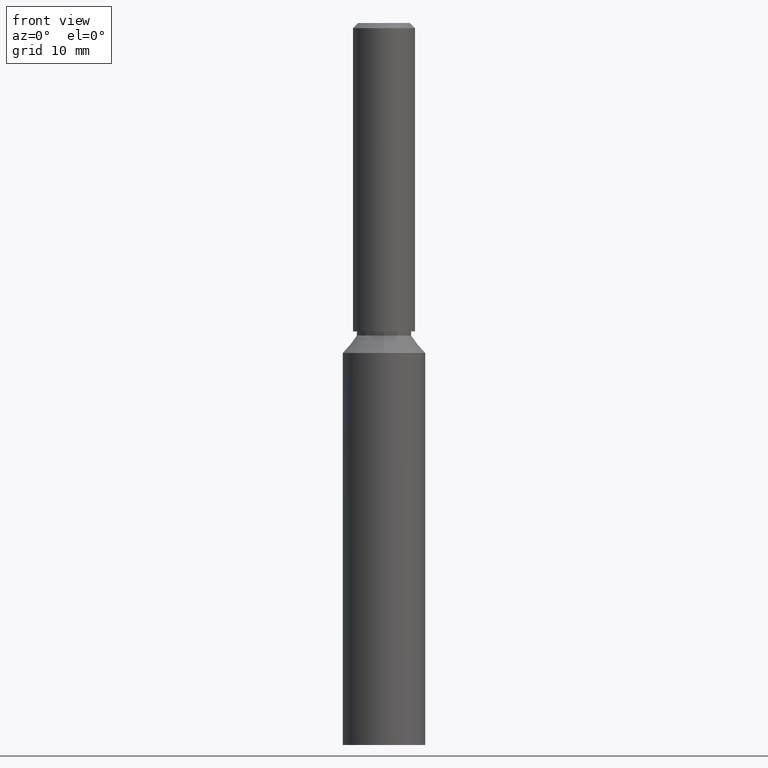
[diagram: clean part render]
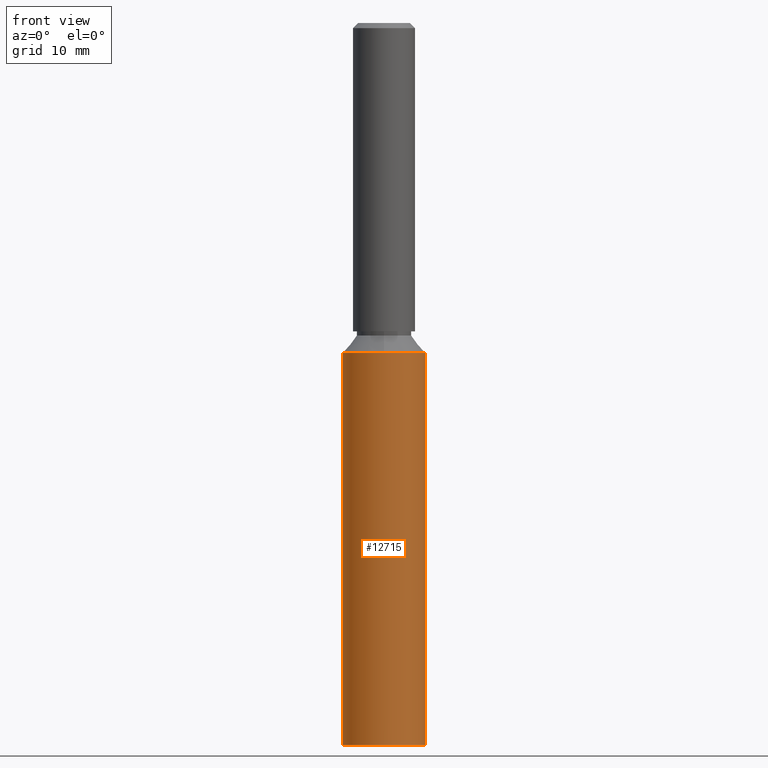
[diagram: same view with one face highlighted and labeled with its STEP entity id]
A machine part, front view. The second image highlights one B-rep face of the part: STEP entity #12715.
In plain terms, the highlighted cylindrical surface (partial cylindrical patch) has radius 4 mm, axis along (-0, -0, -1).
Its self-contained STEP definition (entity closure, byte-faithful):
#13 = CARTESIAN_POINT ( 'NONE',  ( 0.0000000000000000000, 0.0000000000000000000, 40.00000000000000000 ) ) ;
#96 = LINE ( 'NONE', #10532, #11823 ) ;
#280 = DIRECTION ( 'NONE',  ( -0.0000000000000000000, -0.0000000000000000000, -1.000000000000000000 ) ) ;
#457 = DIRECTION ( 'NONE',  ( -0.0000000000000000000, -0.0000000000000000000, -1.000000000000000000 ) ) ;
#495 = ORIENTED_EDGE ( 'NONE', *, *, #6639, .T. ) ;
#1008 = DIRECTION ( 'NONE',  ( -0.0000000000000000000, -0.0000000000000000000, -1.000000000000000000 ) ) ;
#1083 = EDGE_LOOP ( 'NONE', ( #3605, #4181, #495, #11841, #9425 ) ) ;
#1118 = EDGE_CURVE ( 'NONE', #5569, #11397, #10352, .T. ) ;
#1419 = EDGE_CURVE ( 'NONE', #11397, #9381, #4123, .T. ) ;
#3063 = DIRECTION ( 'NONE',  ( 0.0000000000000000000, 0.0000000000000000000, 1.000000000000000000 ) ) ;
#3149 = CARTESIAN_POINT ( 'NONE',  ( -4.000000000000000000, 0.0000000000000000000, 40.00000000000000000 ) ) ;
#3605 = ORIENTED_EDGE ( 'NONE', *, *, #8265, .F. ) ;
#4086 = DIRECTION ( 'NONE',  ( -0.0000000000000000000, 1.967742040464204400E-018, -1.000000000000000000 ) ) ;
#4123 = CIRCLE ( 'NONE', #9185, 4.000000000000000000 ) ;
#4181 = ORIENTED_EDGE ( 'NONE', *, *, #10044, .T. ) ;
#4563 = CIRCLE ( 'NONE', #12453, 4.000000000000005300 ) ;
#5094 = DIRECTION ( 'NONE',  ( -1.000000000000000000, 0.0000000000000000000, 0.0000000000000000000 ) ) ;
#5155 = VERTEX_POINT ( 'NONE', #12549 ) ;
#5322 = CARTESIAN_POINT ( 'NONE',  ( 4.000000000000000000, 4.898587196589412800E-016, 0.0000000000000000000 ) ) ;
#5569 = VERTEX_POINT ( 'NONE', #12519 ) ;
#5578 = CIRCLE ( 'NONE', #9134, 4.000000000000005300 ) ;
#5856 = VERTEX_POINT ( 'NONE', #8258 ) ;
#6002 = DIRECTION ( 'NONE',  ( 1.000000000000000000, 0.0000000000000000000, 0.0000000000000000000 ) ) ;
#6639 = EDGE_CURVE ( 'NONE', #5155, #5569, #4563, .T. ) ;
#7723 = CARTESIAN_POINT ( 'NONE',  ( -4.000000000000000000, 0.0000000000000000000, 0.0000000000000000000 ) ) ;
#8202 = CARTESIAN_POINT ( 'NONE',  ( 0.0000000000000000000, -7.477419753763976000E-017, 38.00000000000000000 ) ) ;
#8258 = CARTESIAN_POINT ( 'NONE',  ( 4.000000000000005300, 4.898587196589420700E-016, 38.00000000000000000 ) ) ;
#8265 = EDGE_CURVE ( 'NONE', #5856, #9381, #96, .T. ) ;
#9122 = CARTESIAN_POINT ( 'NONE',  ( 0.0000000000000000000, 0.0000000000000000000, 0.0000000000000000000 ) ) ;
#9134 = AXIS2_PLACEMENT_3D ( 'NONE', #12871, #10946, #12029 ) ;
#9185 = AXIS2_PLACEMENT_3D ( 'NONE', #9122, #3063, #6002 ) ;
#9304 = AXIS2_PLACEMENT_3D ( 'NONE', #13, #1008, #5094 ) ;
#9381 = VERTEX_POINT ( 'NONE', #5322 ) ;
#9425 = ORIENTED_EDGE ( 'NONE', *, *, #1419, .T. ) ;
#10044 = EDGE_CURVE ( 'NONE', #5856, #5155, #5578, .T. ) ;
#10197 = VECTOR ( 'NONE', #280, 1000.000000000000000 ) ;
#10352 = LINE ( 'NONE', #3149, #10197 ) ;
#10532 = CARTESIAN_POINT ( 'NONE',  ( 4.000000000000000000, 4.898587196589412800E-016, 40.00000000000000000 ) ) ;
#10946 = DIRECTION ( 'NONE',  ( -0.0000000000000000000, 1.967742040464204400E-018, -1.000000000000000000 ) ) ;
#11205 = DIRECTION ( 'NONE',  ( 0.0000000000000000000, 1.000000000000000000, 0.0000000000000000000 ) ) ;
#11397 = VERTEX_POINT ( 'NONE', #7723 ) ;
#11823 = VECTOR ( 'NONE', #457, 1000.000000000000000 ) ;
#11841 = ORIENTED_EDGE ( 'NONE', *, *, #1118, .T. ) ;
#12029 = DIRECTION ( 'NONE',  ( 0.0000000000000000000, 1.000000000000000000, 0.0000000000000000000 ) ) ;
#12453 = AXIS2_PLACEMENT_3D ( 'NONE', #8202, #4086, #11205 ) ;
#12519 = CARTESIAN_POINT ( 'NONE',  ( -4.000000000000005300, 9.629649721936179300E-032, 38.00000000000000000 ) ) ;
#12549 = CARTESIAN_POINT ( 'NONE',  ( 4.898587196589419700E-016, -4.000000000000005300, 38.00000000000000000 ) ) ;
#12552 = CYLINDRICAL_SURFACE ( 'NONE', #9304, 4.000000000000000000 ) ;
#12715 = ADVANCED_FACE ( 'NONE', ( #12889 ), #12552, .T. ) ;
#12871 = CARTESIAN_POINT ( 'NONE',  ( 0.0000000000000000000, -7.477419753763976000E-017, 38.00000000000000000 ) ) ;
#12889 = FACE_OUTER_BOUND ( 'NONE', #1083, .T. ) ;